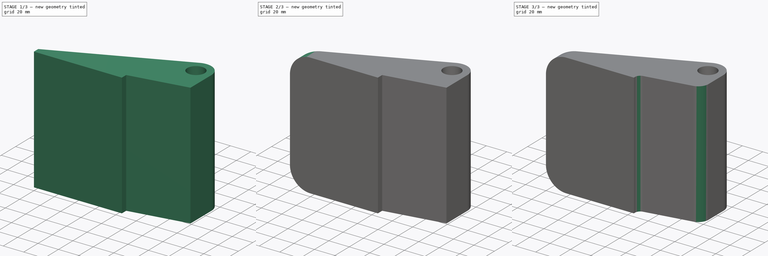
[diagram: build sequence overview — one tinted view per stage of 3, left to right]
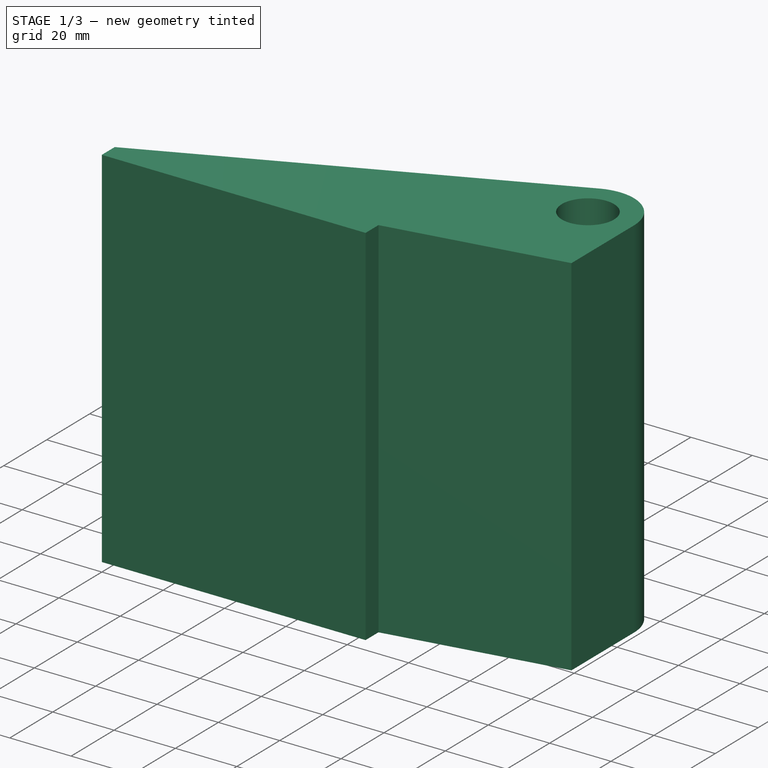
[diagram: stage 1 of 3 — iso view after this stage's code; geometry added in this stage tinted green]
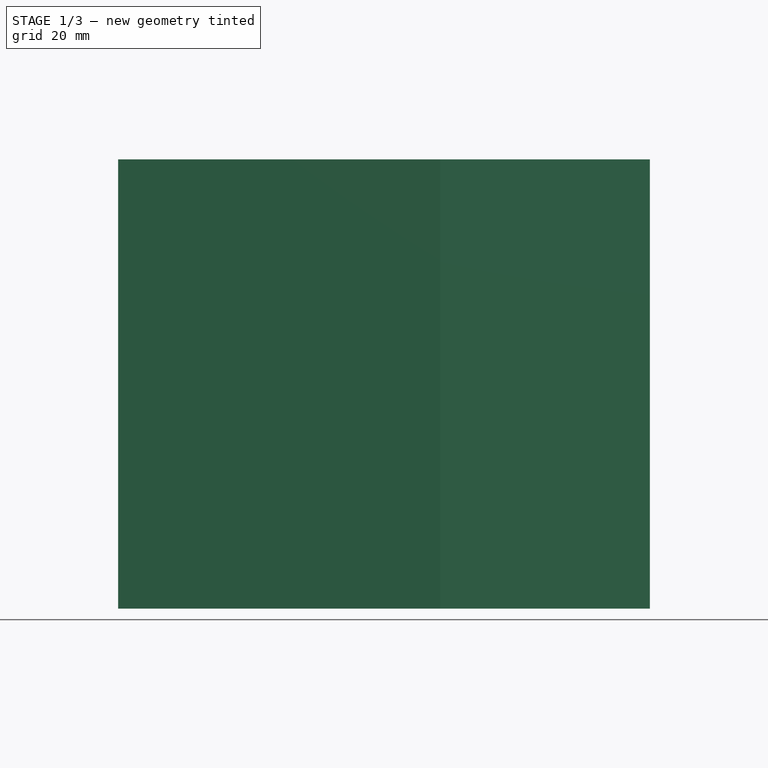
[diagram: stage 1 of 3 — front view after this stage's code; geometry added in this stage tinted green]
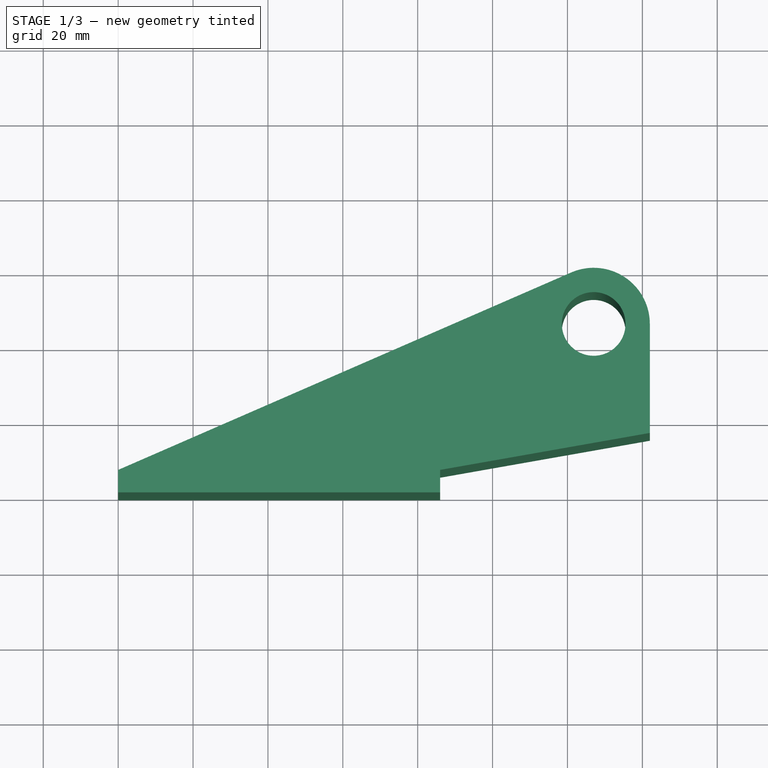
[diagram: stage 1 of 3 — top view after this stage's code; geometry added in this stage tinted green]
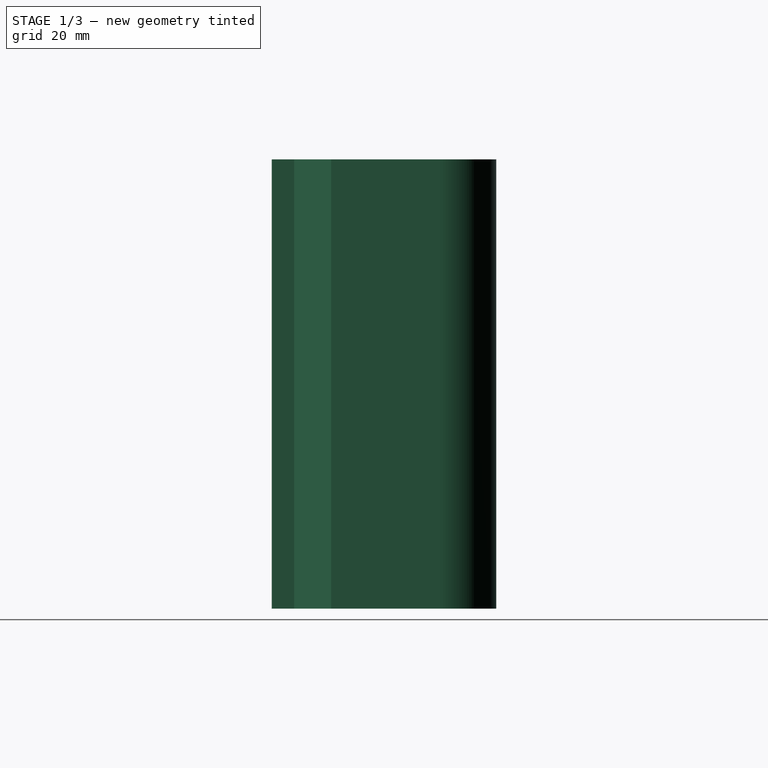
[diagram: stage 1 of 3 — right view after this stage's code; geometry added in this stage tinted green]
FCSTD DOCUMENT  (FreeCAD 0.18R4 (GitTag))
Label: door-hinge
License: All rights reserved
LicenseURL: http://en.wikipedia.org/wiki/All_rights_reserved
objects: Sketcher::SketchObject×3, PartDesign::Fillet×3, PartDesign::Pocket×2, PartDesign::Pad×1, PartDesign::Mirrored×1, PartDesign::Body×1
note: 14 computed .brp shape members not serialized (recipe doc carries the construction recipe); baked Part::Feature solids carry a one-line shape summary decoded from their .brp

FEATURE [Sketcher::SketchObject] Sketch
  MapMode = 5
  Support = -> [XY_Plane]
  sketch-geometry (8):
    g0: LineSegment StartX=0 StartY=0 StartZ=0 EndX=0 EndY=6 EndZ=0
    g1: LineSegment StartX=0 StartY=6 StartZ=0 EndX=121.007 EndY=58.7408 EndZ=0
    g2: ArcOfCircle CenterX=127 CenterY=44.9902 CenterZ=0 NormalX=0 NormalY=0 NormalZ=1 AngleXU=0 Radius=15 StartAngle=1.10548e-07 EndAngle=1.98182
    g3: LineSegment StartX=142 StartY=44.9902 StartZ=0 EndX=142 EndY=15.8743 EndZ=0
    g4: LineSegment StartX=142 StartY=15.8743 StartZ=0 EndX=86 EndY=6 EndZ=0
    g5: LineSegment StartX=86 StartY=6 StartZ=0 EndX=86 EndY=0 EndZ=0
    g6: LineSegment StartX=86 StartY=0 StartZ=0 EndX=0 EndY=0 EndZ=0
    g7: Circle CenterX=127 CenterY=44.9902 CenterZ=0 NormalX=0 NormalY=0 NormalZ=1 AngleXU=0 Radius=8.5
  constraints (23):
    c: Coincident(g0,g-1)
    c: Vertical(g0)
    c: Coincident(g1,g0)
    c: Coincident(g2,g1)
    c: Coincident(g3,g2)
    c: Vertical(g3)
    c: Coincident(g4,g3)
    c: Coincident(g5,g4)
    c: PointOnObject(g5,g-1)
    c: Coincident(g6,g5)
    c: Coincident(g6,g0)
    c: Vertical(g5)
    c: DistanceX(g0,g3) = 142
    c: Angle(g6,g1) = 0.411025
    c: DistanceY(g0,g0) = 6
    c: DistanceX(g6,g6) = 86
    c: Angle(g4,g6) = 2.96706
    c: Radius(g2) = 15
    c: Tangent(g1,g2)
    c: Tangent(g3,g2)
    c: DistanceY(g5,g5) = 6
    c: Coincident(g7,g2)
    c: Diameter(g7) = 17
FEATURE [PartDesign::Pad] Pad
  Length = 120
  Length2 = 100
  Midplane = true
  Profile = -> Sketch
  Refine = true
  Type = 0
FEATURE [Sketcher::SketchObject] Sketch001
  ExternalGeometry = -> [Pad]
  MapMode = 5
  Support = -> [XY_Plane]
  sketch-geometry (7):
    g0: LineSegment StartX=-48 StartY=-2.4637 StartZ=0 EndX=112 EndY=25.7486 EndZ=0
    g1: LineSegment StartX=112 StartY=25.7486 StartZ=0 EndX=112 EndY=44.9902 EndZ=0
    g2: LineSegment StartX=152 StartY=87.5363 StartZ=0 EndX=-48 EndY=87.5363 EndZ=0
    g3: LineSegment StartX=-48 StartY=87.5363 StartZ=0 EndX=-48 EndY=-2.4637 EndZ=0
    g4: ArcOfCircle CenterX=127 CenterY=44.9902 CenterZ=0 NormalX=0 NormalY=0 NormalZ=1 AngleXU=0 Radius=15 StartAngle=2.1979e-08 EndAngle=3.14159
    g5: LineSegment StartX=142 StartY=44.9902 StartZ=0 EndX=152 EndY=44.9902 EndZ=0
    g6: LineSegment StartX=152 StartY=44.9902 StartZ=0 EndX=152 EndY=87.5363 EndZ=0
  constraints (21):
    c: Coincident(g1,g0)
    c: Vertical(g1)
    c: Coincident(g3,g2)
    c: Vertical(g3)
    c: PointOnObject(g-3,g0)
    c: Coincident(g3,g0)
    c: DistanceX(g0,g-4) = 15
    c: Horizontal(g2)
    c: Angle(g-1,g0) = 0.174533
    c: Coincident(g1,g4)
    c: Coincident(g4,g-4)
    c: Radius(g4) = 15
    c: Coincident(g5,g4)
    c: Horizontal(g5)
    c: Coincident(g6,g5)
    c: Vertical(g6)
    c: Coincident(g6,g2)
    c: DistanceX(g2,g2) = 200
    c: DistanceX(g5,g5) = 10
    c: DistanceY(g3,g3) = 90
    c: Tangent(g4,g1)
FEATURE [PartDesign::Pocket] Pocket
  BaseFeature = -> Pad
  Length = 90
  Length2 = 100
  Midplane = true
  Profile = -> Sketch001
  Refine = true
  Type = 0
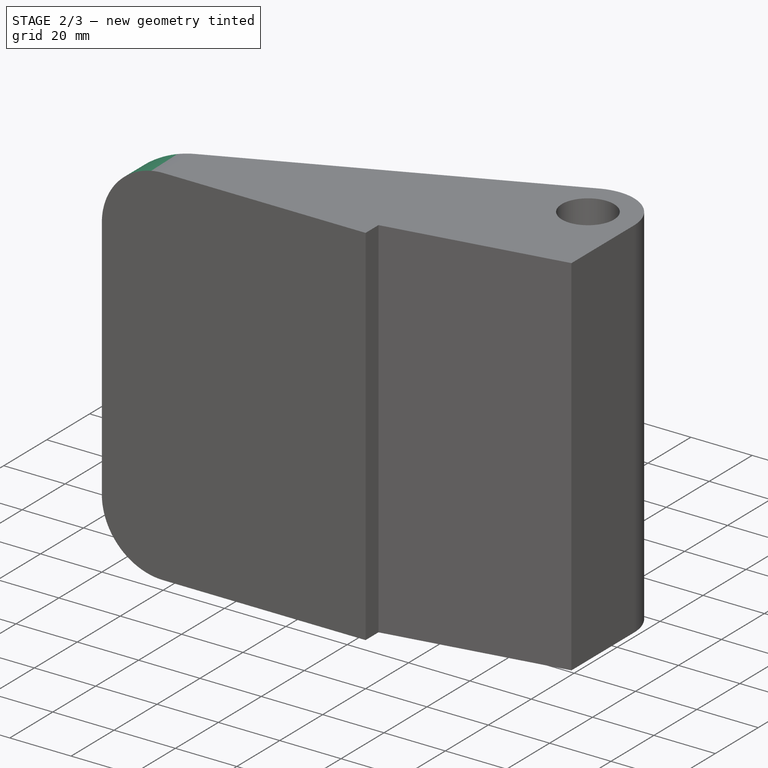
[diagram: stage 2 of 3 — iso view after this stage's code; geometry added in this stage tinted green]
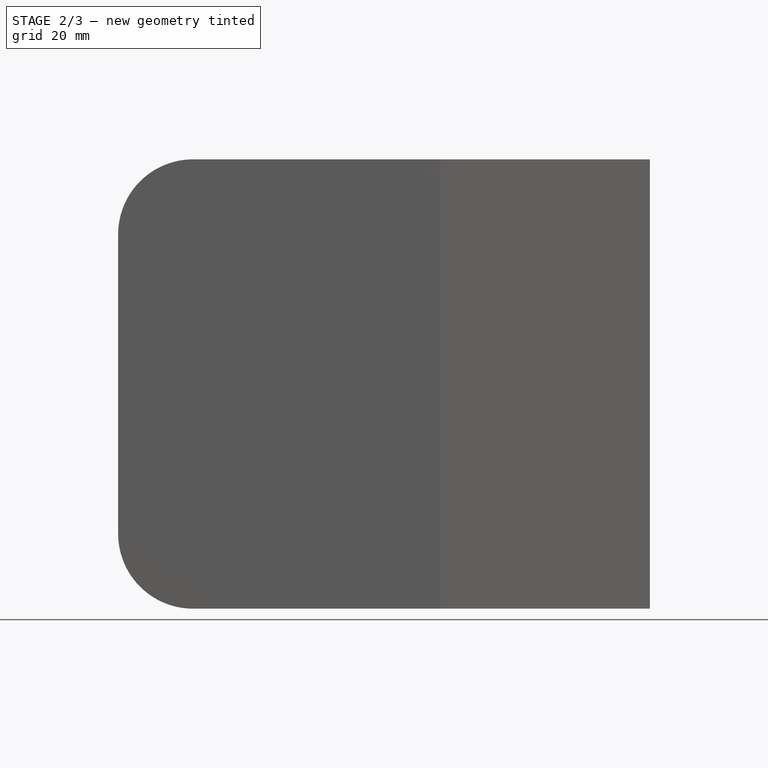
[diagram: stage 2 of 3 — front view after this stage's code; geometry added in this stage tinted green]
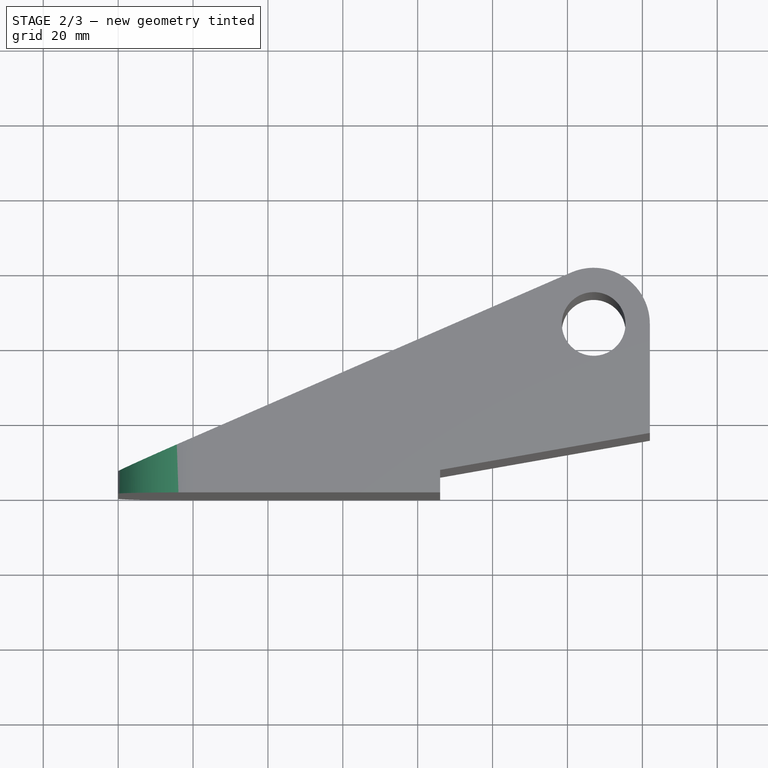
[diagram: stage 2 of 3 — top view after this stage's code; geometry added in this stage tinted green]
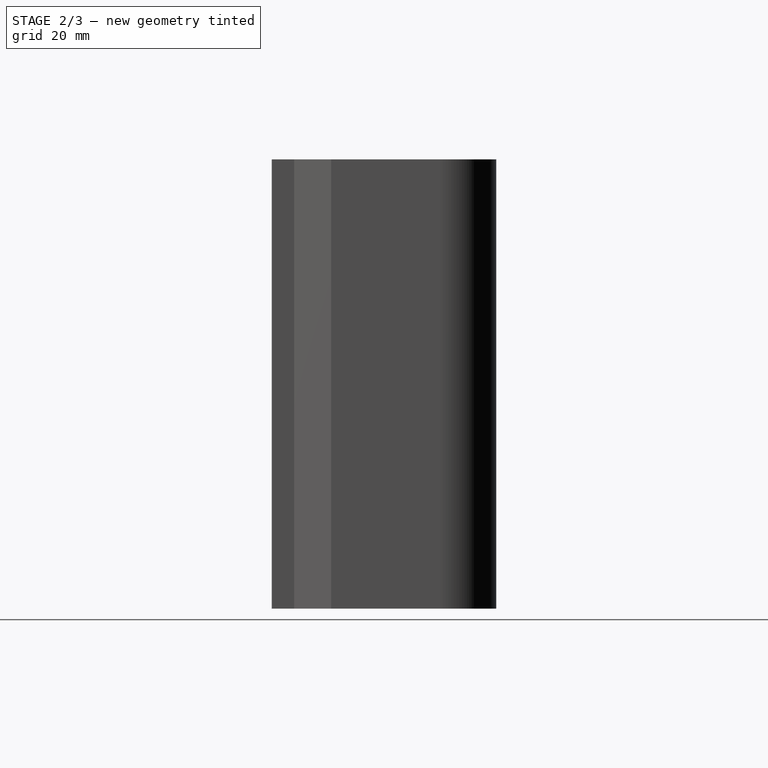
[diagram: stage 2 of 3 — right view after this stage's code; geometry added in this stage tinted green]
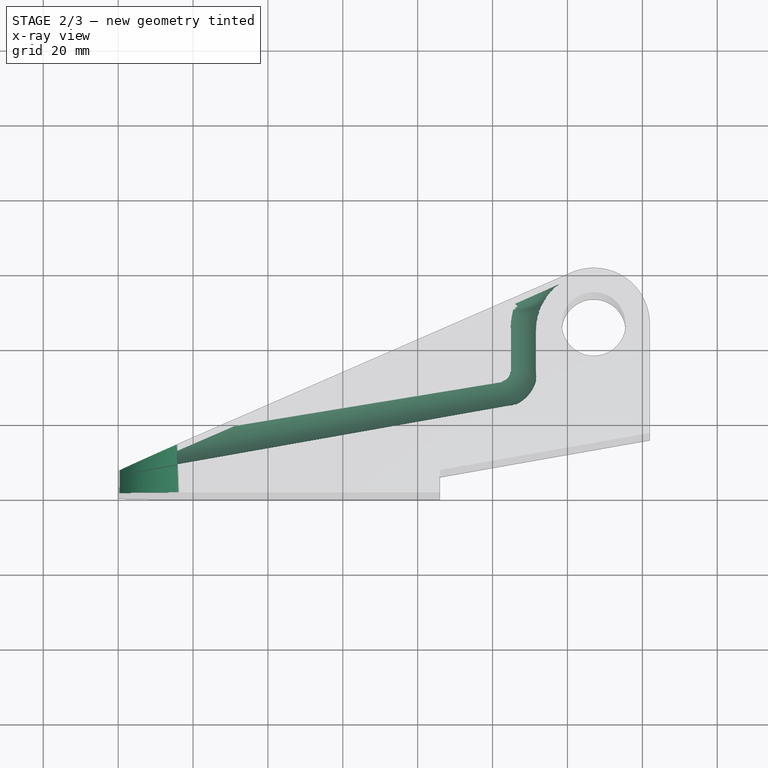
[diagram: stage 2 of 3 — x-ray composite at the top view; earlier geometry ghosted, this stage's added geometry solid]
FEATURE [PartDesign::Fillet] Fillet
  Base = -> Pocket [Edge34,Edge33,Edge16,Edge17,Edge37,Edge36,Edge18]
  BaseFeature = -> Pocket
  Radius = 10
FEATURE [Sketcher::SketchObject] Sketch002
  ExternalGeometry = -> [Fillet]
  MapMode = 5
  Placement = pos=(0,0,0) rot=(1,0,0;1.5708rad)
  Support = -> [Fillet]
  sketch-geometry (5):
    g0: ArcOfCircle CenterX=20 CenterY=40 CenterZ=0 NormalX=0 NormalY=0 NormalZ=1 AngleXU=0 Radius=20 StartAngle=1.5708 EndAngle=3.1416
    g1: LineSegment StartX=20 StartY=60 StartZ=0 EndX=20 EndY=89.9999 EndZ=0
    g2: LineSegment StartX=20 StartY=89.9999 StartZ=0 EndX=-30 EndY=89.9999 EndZ=0
    g3: LineSegment StartX=-30 StartY=89.9999 StartZ=0 EndX=-30 EndY=39.9999 EndZ=0
    g4: LineSegment StartX=0 StartY=39.9999 StartZ=0 EndX=-30 EndY=39.9999 EndZ=0
  constraints (16):
    c: PointOnObject(g0,g-4)
    c: PointOnObject(g0,g-3)
    c: Tangent(g0,g-3)
    c: Tangent(g0,g-4)
    c: Radius(g0) = 20
    c: Coincident(g1,g0)
    c: Vertical(g1)
    c: Coincident(g2,g1)
    c: Horizontal(g2)
    c: Coincident(g3,g2)
    c: Vertical(g3)
    c: Coincident(g4,g0)
    c: Horizontal(g4)
    c: Coincident(g4,g3)
    c: DistanceX(g2,g2) = 50
    c: DistanceY(g3,g3) = 50
FEATURE [PartDesign::Pocket] Pocket001
  BaseFeature = -> Fillet
  Length = 5
  Length2 = 100
  Profile = -> Sketch002
  Refine = true
  Type = 1
FEATURE [PartDesign::Mirrored] Mirrored
  BaseFeature = -> Pocket001
  MirrorPlane = -> XY_Plane
  Originals = -> [Pocket001]
  Refine = true
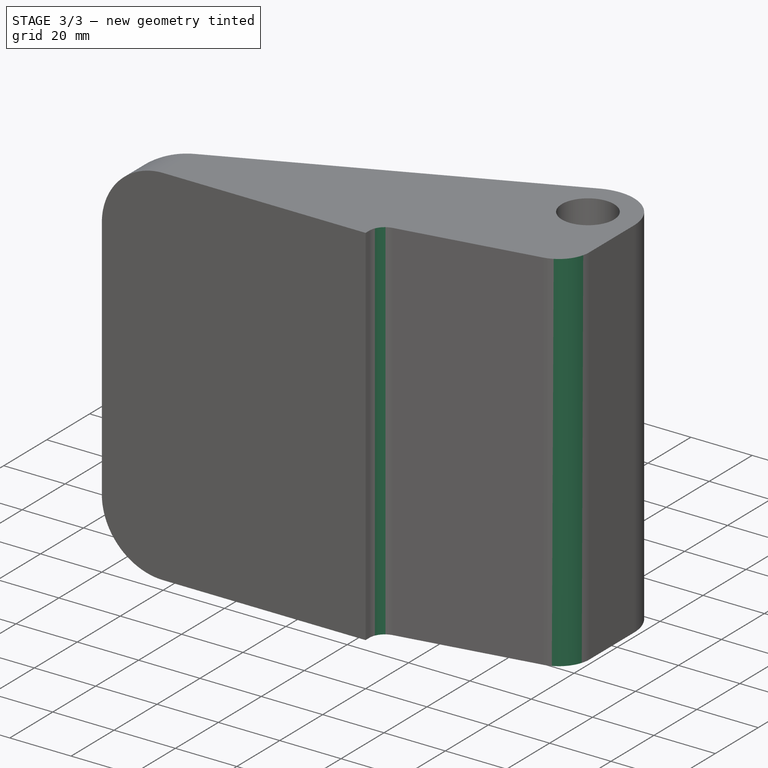
[diagram: stage 3 of 3 — iso view after this stage's code; geometry added in this stage tinted green]
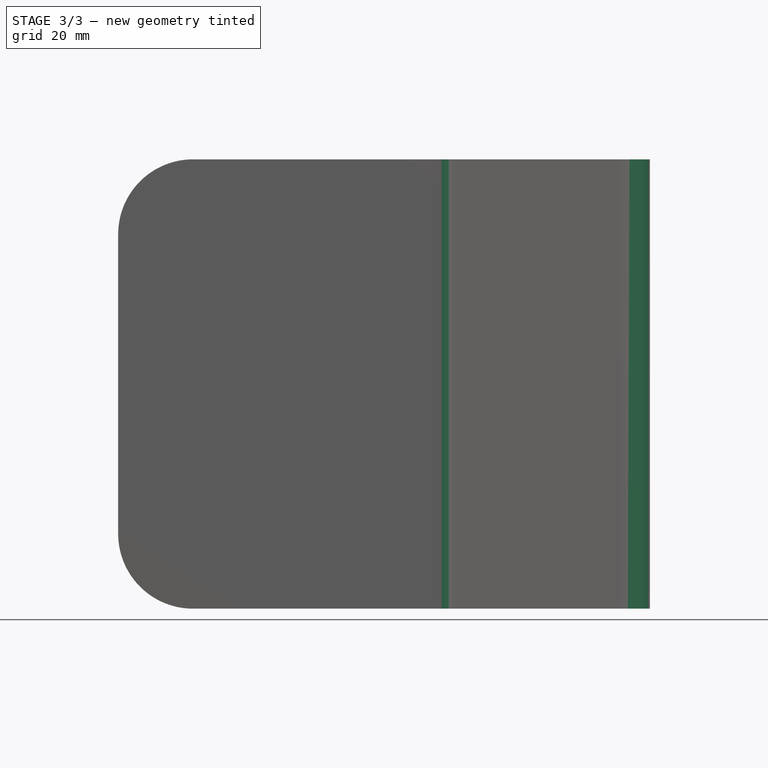
[diagram: stage 3 of 3 — front view after this stage's code; geometry added in this stage tinted green]
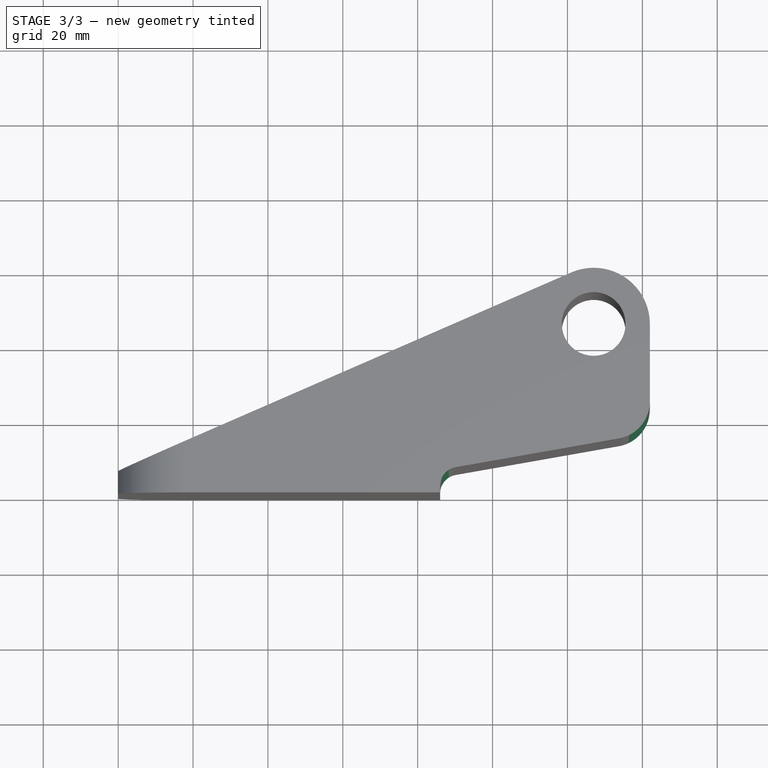
[diagram: stage 3 of 3 — top view after this stage's code; geometry added in this stage tinted green]
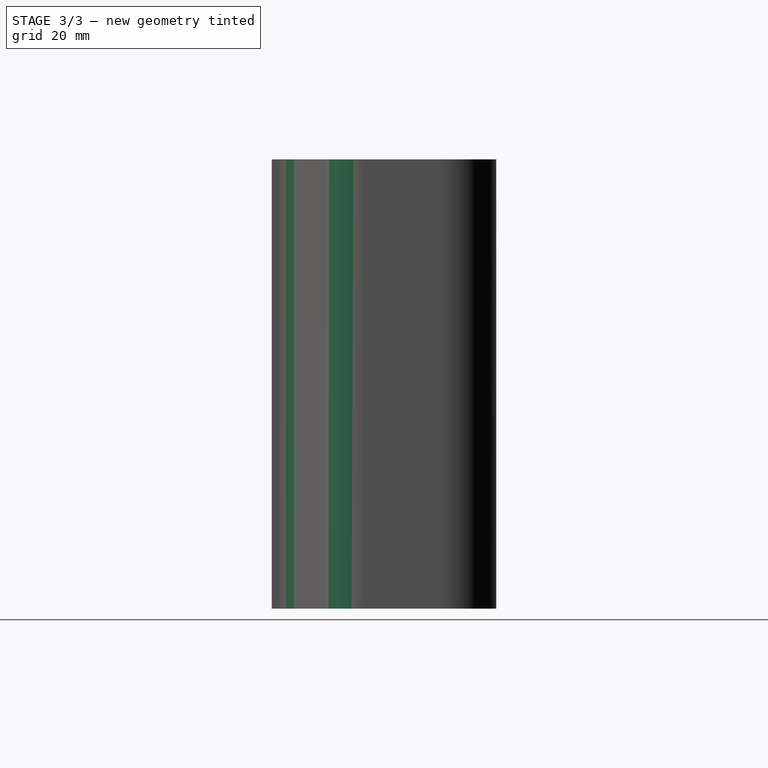
[diagram: stage 3 of 3 — right view after this stage's code; geometry added in this stage tinted green]
FEATURE [PartDesign::Fillet] Fillet001
  Base = -> Mirrored [Edge60]
  BaseFeature = -> Mirrored
  Radius = 5
FEATURE [PartDesign::Fillet] Fillet002
  Base = -> Fillet001 [Edge19]
  BaseFeature = -> Fillet001
  Radius = 10
FEATURE [PartDesign::Body] Body
  Group = -> [Sketch,Pad,Sketch001,Pocket,Fillet,Sketch002,Pocket001,Mirrored,Fillet001,Fillet002]
  Origin = -> Origin
  Tip = -> Fillet002
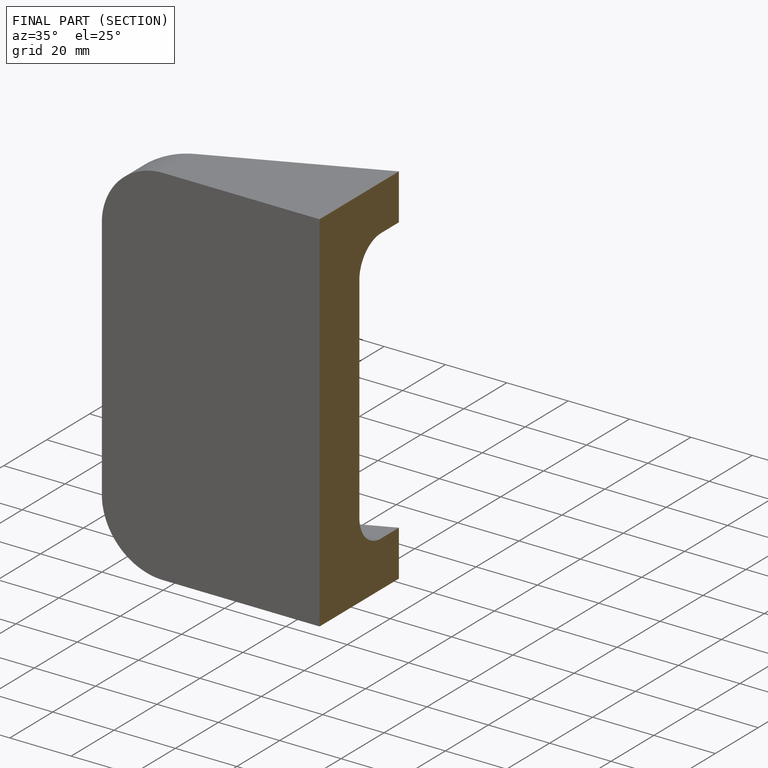
[diagram: finished part — half-section view (interior)]
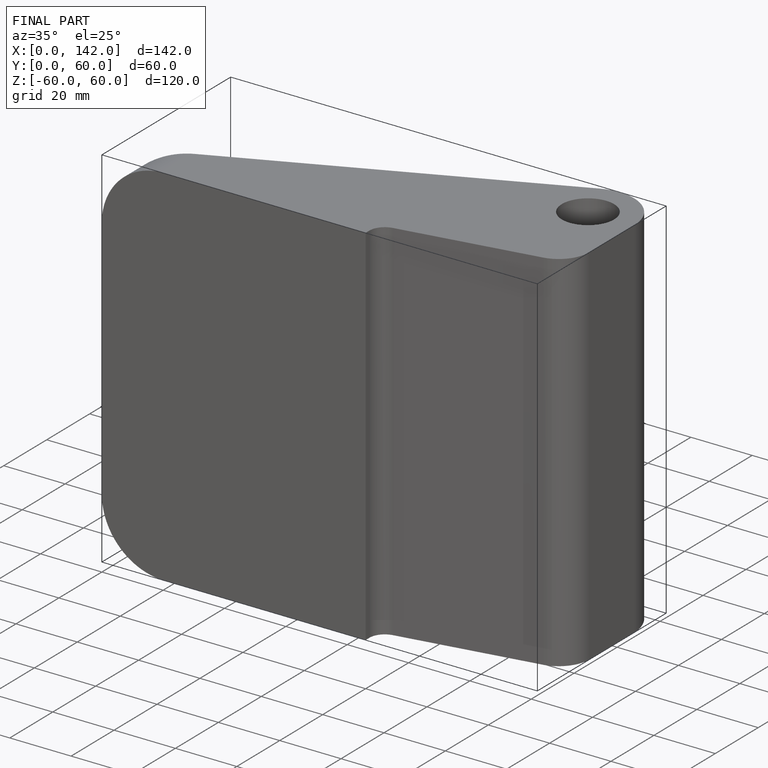
[diagram: finished part — iso view with bounding-box wireframe]
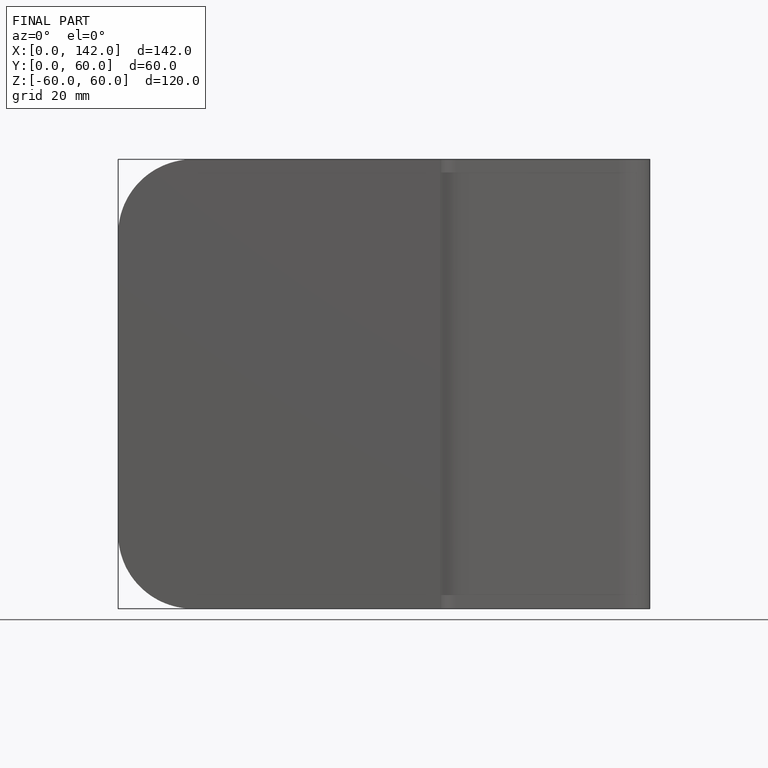
[diagram: finished part — front view with bounding-box wireframe]
